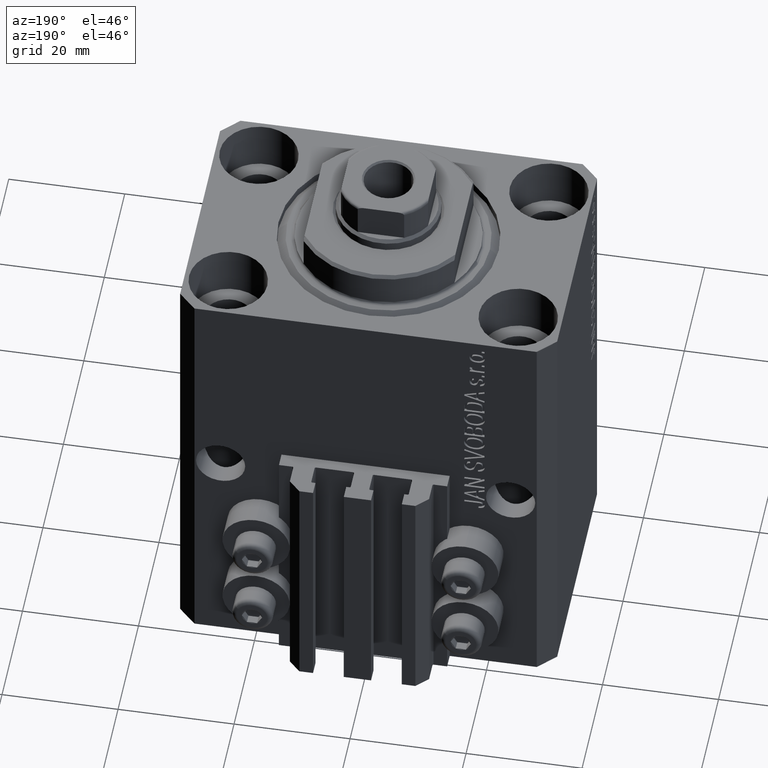
[diagram: clean part render]
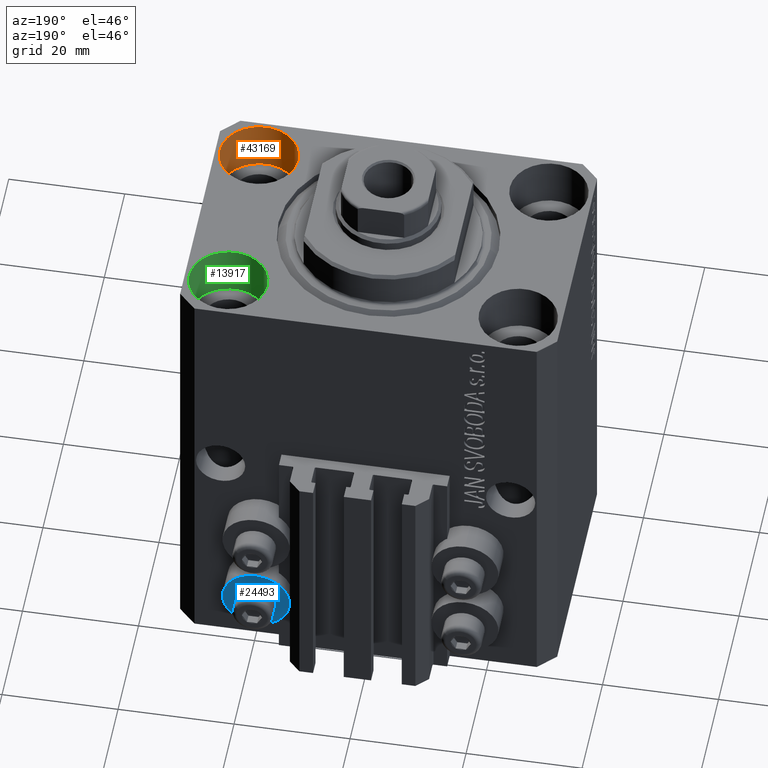
[diagram: same view with three faces highlighted in distinct colors, each labeled with its STEP entity id]
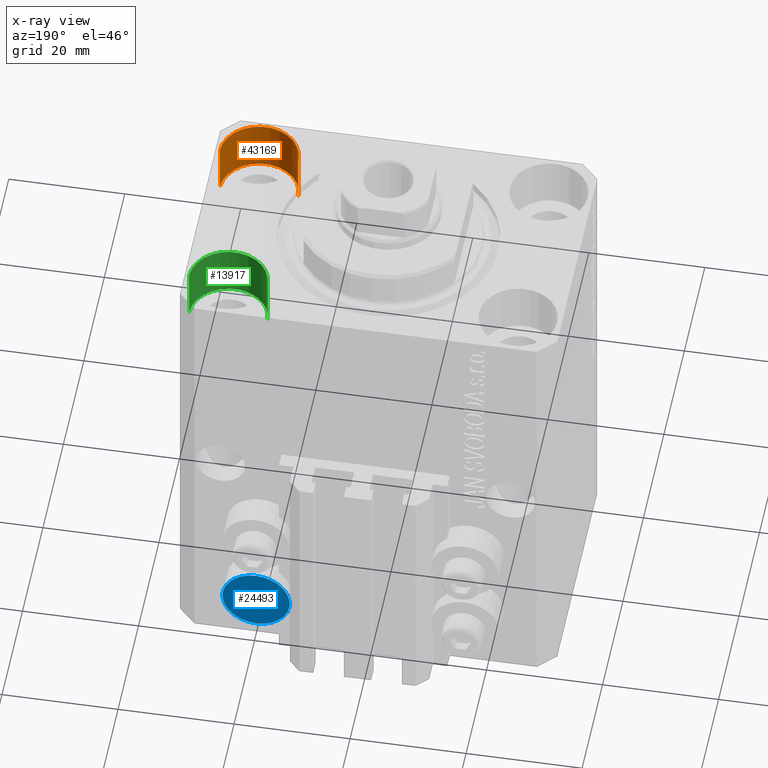
[diagram: x-ray of the same camera — body ghosted, the three highlighted faces saturated]
A machine part, auxiliary view with three faces highlighted in distinct colors.
The next image is the same camera in x-ray (body ghosted, the three faces saturated) — at least one of them is partly hidden behind the body in this view.
Their STEP definitions:

[orange] entity #43169 — the highlighted cylindrical surface (partial cylindrical patch) has radius 6.75 mm, axis along (0, 0, 1).
#2096 = AXIS2_PLACEMENT_3D ( 'NONE', #13264, #21154, #35460 ) ;
#3186 = DIRECTION ( 'NONE',  ( 1.000000000000000000, 0.000000000000000000, 0.000000000000000000 ) ) ;
#3218 = CYLINDRICAL_SURFACE ( 'NONE', #2096, 6.749999999977465137 ) ;
#3455 = LINE ( 'NONE', #14203, #17681 ) ;
#4361 = EDGE_CURVE ( 'NONE', #39474, #27431, #43816, .T. ) ;
#5142 = CIRCLE ( 'NONE', #41694, 6.749999999977465137 ) ;
#7012 = CARTESIAN_POINT ( 'NONE',  ( 18.25000000002253842, -15.00000000000000000, -9.000000000000000000 ) ) ;
#7037 = DIRECTION ( 'NONE',  ( -0.000000000000000000, -0.000000000000000000, 1.000000000000000000 ) ) ;
#11327 = ORIENTED_EDGE ( 'NONE', *, *, #33528, .F. ) ;
#13264 = CARTESIAN_POINT ( 'NONE',  ( 25.00000000000000355, -15.00000000000000000, -9.000000000000000000 ) ) ;
#13721 = LINE ( 'NONE', #42817, #26379 ) ;
#13738 = FACE_OUTER_BOUND ( 'NONE', #25348, .T. ) ;
#14203 = CARTESIAN_POINT ( 'NONE',  ( 31.74999999997746869, -15.00000000000000000, -9.000000000000000000 ) ) ;
#17160 = EDGE_CURVE ( 'NONE', #39474, #26775, #13721, .T. ) ;
#17632 = ORIENTED_EDGE ( 'NONE', *, *, #4361, .F. ) ;
#17681 = VECTOR ( 'NONE', #7037, 1000.000000000000000 ) ;
#19783 = EDGE_CURVE ( 'NONE', #26775, #31788, #5142, .T. ) ;
#21154 = DIRECTION ( 'NONE',  ( -0.000000000000000000, -0.000000000000000000, 1.000000000000000000 ) ) ;
#23072 = CARTESIAN_POINT ( 'NONE',  ( 18.25000000002253842, -15.00000000000000000, 0.000000000000000000 ) ) ;
#25348 = EDGE_LOOP ( 'NONE', ( #17632, #44389, #27284, #11327 ) ) ;
#25843 = DIRECTION ( 'NONE',  ( 1.000000000000000000, 0.000000000000000000, 0.000000000000000000 ) ) ;
#25856 = DIRECTION ( 'NONE',  ( 0.000000000000000000, 0.000000000000000000, 1.000000000000000000 ) ) ;
#26379 = VECTOR ( 'NONE', #34985, 1000.000000000000000 ) ;
#26775 = VERTEX_POINT ( 'NONE', #23072 ) ;
#27284 = ORIENTED_EDGE ( 'NONE', *, *, #19783, .T. ) ;
#27431 = VERTEX_POINT ( 'NONE', #29755 ) ;
#29755 = CARTESIAN_POINT ( 'NONE',  ( 31.74999999997746869, -15.00000000000000000, -9.000000000000000000 ) ) ;
#31788 = VERTEX_POINT ( 'NONE', #44006 ) ;
#33528 = EDGE_CURVE ( 'NONE', #27431, #31788, #3455, .T. ) ;
#34985 = DIRECTION ( 'NONE',  ( -0.000000000000000000, -0.000000000000000000, 1.000000000000000000 ) ) ;
#35460 = DIRECTION ( 'NONE',  ( 1.000000000000000000, 0.000000000000000000, 0.000000000000000000 ) ) ;
#36363 = CARTESIAN_POINT ( 'NONE',  ( 25.00000000000000355, -15.00000000000000000, -9.000000000000000000 ) ) ;
#39474 = VERTEX_POINT ( 'NONE', #7012 ) ;
#39997 = AXIS2_PLACEMENT_3D ( 'NONE', #36363, #25856, #3186 ) ;
#40154 = DIRECTION ( 'NONE',  ( 0.000000000000000000, 0.000000000000000000, 1.000000000000000000 ) ) ;
#40859 = CARTESIAN_POINT ( 'NONE',  ( 25.00000000000000355, -15.00000000000000000, 0.000000000000000000 ) ) ;
#41694 = AXIS2_PLACEMENT_3D ( 'NONE', #40859, #40154, #25843 ) ;
#42817 = CARTESIAN_POINT ( 'NONE',  ( 18.25000000002253842, -15.00000000000000000, -9.000000000000000000 ) ) ;
#43169 = ADVANCED_FACE ( 'NONE', ( #13738 ), #3218, .F. ) ;
#43816 = CIRCLE ( 'NONE', #39997, 6.749999999977465137 ) ;
#44006 = CARTESIAN_POINT ( 'NONE',  ( 31.74999999997746869, -15.00000000000000000, 0.000000000000000000 ) ) ;
#44389 = ORIENTED_EDGE ( 'NONE', *, *, #17160, .T. ) ;

[blue] entity #24493 — the highlighted planar face has unit normal (0, -1, 0).
#2292 = AXIS2_PLACEMENT_3D ( 'NONE', #41229, #44817, #15254 ) ;
#2817 = EDGE_LOOP ( 'NONE', ( #42935, #23295 ) ) ;
#3884 = DIRECTION ( 'NONE',  ( 0.000000000000000000, 1.000000000000000000, 0.000000000000000000 ) ) ;
#5368 = VERTEX_POINT ( 'NONE', #12298 ) ;
#5426 = FACE_OUTER_BOUND ( 'NONE', #16157, .T. ) ;
#6919 = DIRECTION ( 'NONE',  ( 0.000000000000000000, 1.000000000000000000, 0.000000000000000000 ) ) ;
#7005 = CIRCLE ( 'NONE', #30677, 2.000000000000001776 ) ;
#8519 = DIRECTION ( 'NONE',  ( 0.000000000000000000, -1.000000000000000000, 0.000000000000000000 ) ) ;
#11396 = VERTEX_POINT ( 'NONE', #23505 ) ;
#12298 = CARTESIAN_POINT ( 'NONE',  ( 18.00000000000000355, 27.49999999996051514, -58.20000000000000284 ) ) ;
#13057 = DIRECTION ( 'NONE',  ( -0.000000000000000000, 0.000000000000000000, 1.000000000000000000 ) ) ;
#13800 = DIRECTION ( 'NONE',  ( 0.000000000000000000, 1.000000000000000000, 0.000000000000000000 ) ) ;
#15254 = DIRECTION ( 'NONE',  ( 0.000000000000000000, 0.000000000000000000, -1.000000000000000000 ) ) ;
#16157 = EDGE_LOOP ( 'NONE', ( #29678, #38883 ) ) ;
#16586 = EDGE_CURVE ( 'NONE', #11396, #43770, #43872, .T. ) ;
#17902 = DIRECTION ( 'NONE',  ( 0.000000000000000000, 0.000000000000000000, -1.000000000000000000 ) ) ;
#19157 = DIRECTION ( 'NONE',  ( 0.000000000000000000, 0.000000000000000000, -1.000000000000000000 ) ) ;
#19754 = PLANE ( 'NONE',  #45663 ) ;
#19804 = CIRCLE ( 'NONE', #2292, 5.799999999999999822 ) ;
#20978 = DIRECTION ( 'NONE',  ( 0.000000000000000000, 0.000000000000000000, -1.000000000000000000 ) ) ;
#22039 = CARTESIAN_POINT ( 'NONE',  ( 18.00000000000000355, 27.49999999996051514, -64.00000000000000000 ) ) ;
#22268 = EDGE_CURVE ( 'NONE', #22938, #5368, #23483, .T. ) ;
#22938 = VERTEX_POINT ( 'NONE', #43969 ) ;
#23295 = ORIENTED_EDGE ( 'NONE', *, *, #34915, .F. ) ;
#23483 = CIRCLE ( 'NONE', #36458, 5.799999999999999822 ) ;
#23505 = CARTESIAN_POINT ( 'NONE',  ( 18.00000000000000355, 27.49999999996051514, -62.00000000000000000 ) ) ;
#23807 = CARTESIAN_POINT ( 'NONE',  ( 12.20000000000000284, 27.49999999996051514, -64.00000000000000000 ) ) ;
#24493 = ADVANCED_FACE ( 'NONE', ( #41930, #5426 ), #19754, .F. ) ;
#25132 = CARTESIAN_POINT ( 'NONE',  ( 18.00000000000000355, 27.49999999996051514, -66.00000000000000000 ) ) ;
#27657 = CARTESIAN_POINT ( 'NONE',  ( 18.00000000000000355, 27.49999999996051514, -64.00000000000000000 ) ) ;
#29678 = ORIENTED_EDGE ( 'NONE', *, *, #22268, .T. ) ;
#30282 = EDGE_CURVE ( 'NONE', #5368, #22938, #19804, .T. ) ;
#30677 = AXIS2_PLACEMENT_3D ( 'NONE', #22039, #3884, #19157 ) ;
#32480 = AXIS2_PLACEMENT_3D ( 'NONE', #27657, #13800, #20978 ) ;
#34915 = EDGE_CURVE ( 'NONE', #43770, #11396, #7005, .T. ) ;
#36458 = AXIS2_PLACEMENT_3D ( 'NONE', #39628, #6919, #17902 ) ;
#38883 = ORIENTED_EDGE ( 'NONE', *, *, #30282, .T. ) ;
#39628 = CARTESIAN_POINT ( 'NONE',  ( 18.00000000000000355, 27.49999999996051514, -64.00000000000000000 ) ) ;
#41229 = CARTESIAN_POINT ( 'NONE',  ( 18.00000000000000355, 27.49999999996051514, -64.00000000000000000 ) ) ;
#41930 = FACE_BOUND ( 'NONE', #2817, .T. ) ;
#42935 = ORIENTED_EDGE ( 'NONE', *, *, #16586, .F. ) ;
#43770 = VERTEX_POINT ( 'NONE', #25132 ) ;
#43872 = CIRCLE ( 'NONE', #32480, 2.000000000000001776 ) ;
#43969 = CARTESIAN_POINT ( 'NONE',  ( 18.00000000000000355, 27.49999999996051514, -69.79999999999999716 ) ) ;
#44817 = DIRECTION ( 'NONE',  ( 0.000000000000000000, 1.000000000000000000, 0.000000000000000000 ) ) ;
#45663 = AXIS2_PLACEMENT_3D ( 'NONE', #23807, #8519, #13057 ) ;

[green] entity #13917 — the highlighted cylindrical surface (partial cylindrical patch) has radius 6.75 mm, axis along (0, 0, 1).
#32 = DIRECTION ( 'NONE',  ( 1.000000000000000000, 0.000000000000000000, 0.000000000000000000 ) ) ;
#281 = CARTESIAN_POINT ( 'NONE',  ( 31.74999999995845101, 15.00000000000000888, -9.000000000000000000 ) ) ;
#616 = DIRECTION ( 'NONE',  ( -0.000000000000000000, -0.000000000000000000, 1.000000000000000000 ) ) ;
#2203 = LINE ( 'NONE', #16779, #15070 ) ;
#2983 = VERTEX_POINT ( 'NONE', #281 ) ;
#4499 = VERTEX_POINT ( 'NONE', #22984 ) ;
#5403 = VERTEX_POINT ( 'NONE', #23043 ) ;
#5658 = CARTESIAN_POINT ( 'NONE',  ( 18.25000000004154543, 15.00000000000000888, -9.000000000000000000 ) ) ;
#6290 = CIRCLE ( 'NONE', #46705, 6.749999999958452790 ) ;
#6789 = CYLINDRICAL_SURFACE ( 'NONE', #7998, 6.749999999958452790 ) ;
#7998 = AXIS2_PLACEMENT_3D ( 'NONE', #39250, #17548, #21369 ) ;
#11210 = VERTEX_POINT ( 'NONE', #43785 ) ;
#13136 = CARTESIAN_POINT ( 'NONE',  ( 24.99999999999999645, 15.00000000000000888, -9.000000000000000000 ) ) ;
#13309 = EDGE_CURVE ( 'NONE', #11210, #4499, #34795, .T. ) ;
#13917 = ADVANCED_FACE ( 'NONE', ( #20892 ), #6789, .F. ) ;
#15039 = AXIS2_PLACEMENT_3D ( 'NONE', #13136, #25056, #21022 ) ;
#15070 = VECTOR ( 'NONE', #616, 1000.000000000000000 ) ;
#16779 = CARTESIAN_POINT ( 'NONE',  ( 31.74999999995845101, 15.00000000000000888, -9.000000000000000000 ) ) ;
#17331 = ORIENTED_EDGE ( 'NONE', *, *, #36098, .T. ) ;
#17548 = DIRECTION ( 'NONE',  ( -0.000000000000000000, -0.000000000000000000, 1.000000000000000000 ) ) ;
#20877 = EDGE_CURVE ( 'NONE', #2983, #5403, #2203, .T. ) ;
#20892 = FACE_OUTER_BOUND ( 'NONE', #39046, .T. ) ;
#21022 = DIRECTION ( 'NONE',  ( 1.000000000000000000, 0.000000000000000000, 0.000000000000000000 ) ) ;
#21369 = DIRECTION ( 'NONE',  ( 1.000000000000000000, 0.000000000000000000, 0.000000000000000000 ) ) ;
#22984 = CARTESIAN_POINT ( 'NONE',  ( 18.25000000004154543, 15.00000000000000888, 0.000000000000000000 ) ) ;
#23043 = CARTESIAN_POINT ( 'NONE',  ( 31.74999999995845101, 15.00000000000000888, 0.000000000000000000 ) ) ;
#24468 = ORIENTED_EDGE ( 'NONE', *, *, #20877, .F. ) ;
#24914 = CIRCLE ( 'NONE', #15039, 6.749999999958452790 ) ;
#25056 = DIRECTION ( 'NONE',  ( 0.000000000000000000, 0.000000000000000000, 1.000000000000000000 ) ) ;
#25387 = ORIENTED_EDGE ( 'NONE', *, *, #41649, .F. ) ;
#34795 = LINE ( 'NONE', #5658, #40734 ) ;
#36070 = CARTESIAN_POINT ( 'NONE',  ( 24.99999999999999645, 15.00000000000000888, 0.000000000000000000 ) ) ;
#36098 = EDGE_CURVE ( 'NONE', #4499, #5403, #6290, .T. ) ;
#37909 = DIRECTION ( 'NONE',  ( -0.000000000000000000, -0.000000000000000000, 1.000000000000000000 ) ) ;
#38280 = ORIENTED_EDGE ( 'NONE', *, *, #13309, .T. ) ;
#39046 = EDGE_LOOP ( 'NONE', ( #25387, #38280, #17331, #24468 ) ) ;
#39250 = CARTESIAN_POINT ( 'NONE',  ( 24.99999999999999645, 15.00000000000000888, -9.000000000000000000 ) ) ;
#40734 = VECTOR ( 'NONE', #37909, 1000.000000000000000 ) ;
#41649 = EDGE_CURVE ( 'NONE', #11210, #2983, #24914, .T. ) ;
#43785 = CARTESIAN_POINT ( 'NONE',  ( 18.25000000004154543, 15.00000000000000888, -9.000000000000000000 ) ) ;
#46348 = DIRECTION ( 'NONE',  ( 0.000000000000000000, 0.000000000000000000, 1.000000000000000000 ) ) ;
#46705 = AXIS2_PLACEMENT_3D ( 'NONE', #36070, #46348, #32 ) ;